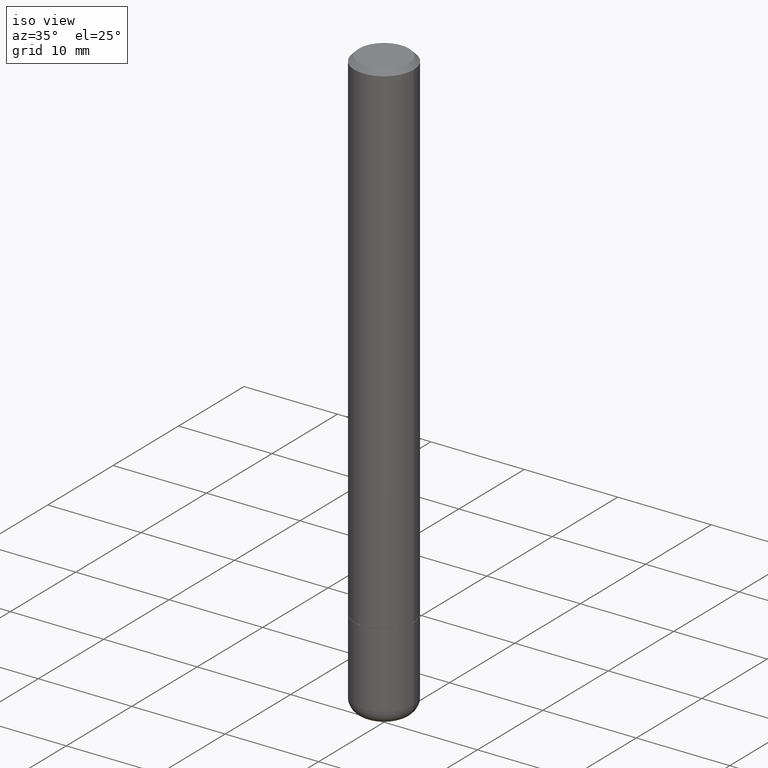
[diagram: clean part render]
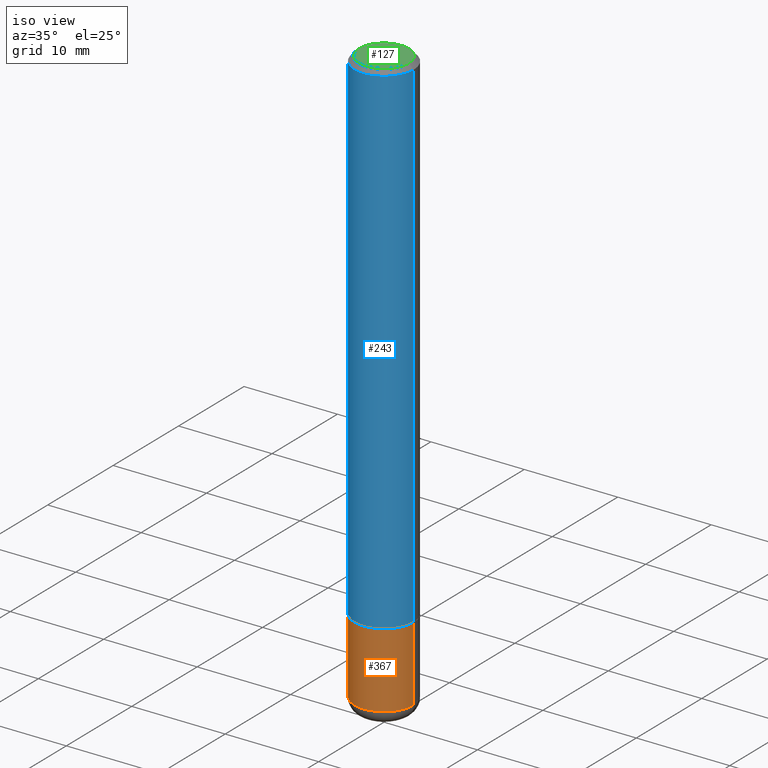
[diagram: same view with three faces highlighted in distinct colors, each labeled with its STEP entity id]
A machine part, iso view with three faces highlighted in distinct colors.
Their STEP definitions:

[orange] entity #367 — the highlighted cylindrical surface (edge-blend (fillet) strip) has radius 3.175 mm, axis along (-0, 0, 1).
#2 = EDGE_CURVE ( 'NONE', #109, #209, #35, .T. ) ;
#25 = CARTESIAN_POINT ( 'NONE',  ( -0.1249999999999998335, 8.881784197001240490E-16, -6.148668862818623819E-30 ) ) ;
#35 = LINE ( 'NONE', #226, #51 ) ;
#51 = VECTOR ( 'NONE', #185, 39.37007874015748143 ) ;
#55 = EDGE_LOOP ( 'NONE', ( #180, #177, #237, #204 ) ) ;
#68 = CARTESIAN_POINT ( 'NONE',  ( -0.1249999999999996253, -7.081131724556683478E-15, -2.125000000000000444 ) ) ;
#93 = CARTESIAN_POINT ( 'NONE',  ( 0.1249999999999996253, -8.292268179752466962E-15, -2.125000000000000444 ) ) ;
#109 = VERTEX_POINT ( 'NONE', #288 ) ;
#137 = CARTESIAN_POINT ( 'NONE',  ( -0.1250000000000000278, -7.081131724556681111E-15, -2.440002284616149986 ) ) ;
#144 = CARTESIAN_POINT ( 'NONE',  ( 0.000000000000000000, 0.000000000000000000, 0.000000000000000000 ) ) ;
#168 = AXIS2_PLACEMENT_3D ( 'NONE', #200, #348, #319 ) ;
#173 = DIRECTION ( 'NONE',  ( -2.445468806185136877E-29, 3.491481338843145188E-15, 1.000000000000000000 ) ) ;
#177 = ORIENTED_EDGE ( 'NONE', *, *, #267, .T. ) ;
#179 = CYLINDRICAL_SURFACE ( 'NONE', #245, 0.1249999999999998335 ) ;
#180 = ORIENTED_EDGE ( 'NONE', *, *, #297, .F. ) ;
#181 = DIRECTION ( 'NONE',  ( 1.000000000000000000, -6.982962677686269077E-15, 0.000000000000000000 ) ) ;
#185 = DIRECTION ( 'NONE',  ( -2.445468806185136877E-29, 3.491481338843145188E-15, 1.000000000000000000 ) ) ;
#200 = CARTESIAN_POINT ( 'NONE',  ( 5.966949474049262823E-29, -8.519222443471929064E-15, -2.440002284616149986 ) ) ;
#204 = ORIENTED_EDGE ( 'NONE', *, *, #350, .F. ) ;
#206 = CARTESIAN_POINT ( 'NONE',  ( 5.196621213143416389E-29, -7.419397845041685201E-15, -2.125000000000000444 ) ) ;
#209 = VERTEX_POINT ( 'NONE', #93 ) ;
#214 = AXIS2_PLACEMENT_3D ( 'NONE', #206, #215, #181 ) ;
#215 = DIRECTION ( 'NONE',  ( -2.445468806185136597E-29, 3.491481338843145583E-15, 1.000000000000000000 ) ) ;
#226 = CARTESIAN_POINT ( 'NONE',  ( 0.1249999999999998335, -8.728703347107821555E-16, 6.095220969744911333E-30 ) ) ;
#237 = ORIENTED_EDGE ( 'NONE', *, *, #2, .T. ) ;
#245 = AXIS2_PLACEMENT_3D ( 'NONE', #144, #296, #369 ) ;
#254 = VECTOR ( 'NONE', #173, 39.37007874015748143 ) ;
#267 = EDGE_CURVE ( 'NONE', #381, #109, #469, .T. ) ;
#288 = CARTESIAN_POINT ( 'NONE',  ( 0.1250000000000000278, -9.392092778182712402E-15, -2.440002284616149986 ) ) ;
#296 = DIRECTION ( 'NONE',  ( -2.445468806185136597E-29, 3.491481338843145583E-15, 1.000000000000000000 ) ) ;
#297 = EDGE_CURVE ( 'NONE', #381, #334, #390, .T. ) ;
#319 = DIRECTION ( 'NONE',  ( 1.000000000000000000, -6.982962677686269077E-15, 0.000000000000000000 ) ) ;
#334 = VERTEX_POINT ( 'NONE', #68 ) ;
#348 = DIRECTION ( 'NONE',  ( -2.445468806185136597E-29, 3.491481338843145583E-15, 1.000000000000000000 ) ) ;
#350 = EDGE_CURVE ( 'NONE', #334, #209, #370, .T. ) ;
#364 = FACE_OUTER_BOUND ( 'NONE', #55, .T. ) ;
#367 = ADVANCED_FACE ( 'NONE', ( #364 ), #179, .T. ) ;
#369 = DIRECTION ( 'NONE',  ( 1.000000000000000000, -6.982962677686266711E-15, 4.876176775795935793E-29 ) ) ;
#370 = CIRCLE ( 'NONE', #214, 0.1249999999999996253 ) ;
#381 = VERTEX_POINT ( 'NONE', #137 ) ;
#390 = LINE ( 'NONE', #25, #254 ) ;
#469 = CIRCLE ( 'NONE', #168, 0.1250000000000000278 ) ;

[blue] entity #243 — the highlighted cylindrical surface (edge-blend (fillet) strip) has radius 3.175 mm, axis along (-0, 0, 1).
#7 = ORIENTED_EDGE ( 'NONE', *, *, #208, .T. ) ;
#21 = CARTESIAN_POINT ( 'NONE',  ( 4.890937612370295054E-31, -6.982962677686322424E-17, -0.02000000000000009062 ) ) ;
#30 = DIRECTION ( 'NONE',  ( 1.000000000000000000, -6.982962677686269077E-15, 0.000000000000000000 ) ) ;
#31 = VERTEX_POINT ( 'NONE', #464 ) ;
#43 = VERTEX_POINT ( 'NONE', #54 ) ;
#53 = CYLINDRICAL_SURFACE ( 'NONE', #309, 0.1249999999999994865 ) ;
#54 = CARTESIAN_POINT ( 'NONE',  ( 0.1249999999999993477, -9.273918764983002075E-16, -0.02000000000000009062 ) ) ;
#60 = EDGE_CURVE ( 'NONE', #31, #43, #440, .T. ) ;
#72 = DIRECTION ( 'NONE',  ( -2.445468806185136877E-29, 3.491481338843145188E-15, 1.000000000000000000 ) ) ;
#75 = LINE ( 'NONE', #400, #339 ) ;
#115 = ORIENTED_EDGE ( 'NONE', *, *, #60, .F. ) ;
#125 = DIRECTION ( 'NONE',  ( -2.445468806185136597E-29, 3.491481338843145583E-15, 1.000000000000000000 ) ) ;
#145 = VERTEX_POINT ( 'NONE', #225 ) ;
#169 = FACE_OUTER_BOUND ( 'NONE', #413, .T. ) ;
#174 = VECTOR ( 'NONE', #315, 39.37007874015748143 ) ;
#198 = DIRECTION ( 'NONE',  ( 1.000000000000000000, -6.982962677686265922E-15, 4.876176775795935793E-29 ) ) ;
#207 = DIRECTION ( 'NONE',  ( -2.445468806185136597E-29, 3.491481338843145583E-15, 1.000000000000000000 ) ) ;
#208 = EDGE_CURVE ( 'NONE', #145, #43, #317, .T. ) ;
#225 = CARTESIAN_POINT ( 'NONE',  ( 0.1249999999999996253, -8.288776698413623955E-15, -2.124000000000000554 ) ) ;
#240 = DIRECTION ( 'NONE',  ( 1.000000000000000000, -6.982962677686265922E-15, 0.000000000000000000 ) ) ;
#243 = ADVANCED_FACE ( 'NONE', ( #169 ), #53, .T. ) ;
#255 = CARTESIAN_POINT ( 'NONE',  ( 5.194175744337230786E-29, -7.415906363702842194E-15, -2.124000000000000554 ) ) ;
#258 = ORIENTED_EDGE ( 'NONE', *, *, #480, .F. ) ;
#292 = DIRECTION ( 'NONE',  ( -2.445468806185136597E-29, 3.491481338843145583E-15, 1.000000000000000000 ) ) ;
#299 = ORIENTED_EDGE ( 'NONE', *, *, #384, .T. ) ;
#308 = AXIS2_PLACEMENT_3D ( 'NONE', #21, #207, #240 ) ;
#309 = AXIS2_PLACEMENT_3D ( 'NONE', #467, #125, #198 ) ;
#315 = DIRECTION ( 'NONE',  ( -2.445468806185136877E-29, 3.491481338843145188E-15, 1.000000000000000000 ) ) ;
#317 = LINE ( 'NONE', #385, #174 ) ;
#339 = VECTOR ( 'NONE', #72, 39.37007874015748143 ) ;
#362 = CARTESIAN_POINT ( 'NONE',  ( -0.1249999999999996253, -2.854689575539726725E-15, -2.124000000000000554 ) ) ;
#384 = EDGE_CURVE ( 'NONE', #449, #145, #476, .T. ) ;
#385 = CARTESIAN_POINT ( 'NONE',  ( 0.1249999999999994865, -8.728703347107796903E-16, 6.095220969744894518E-30 ) ) ;
#400 = CARTESIAN_POINT ( 'NONE',  ( -0.1249999999999994865, 8.881784197001215839E-16, -6.148668862818606303E-30 ) ) ;
#413 = EDGE_LOOP ( 'NONE', ( #258, #299, #7, #115 ) ) ;
#440 = CIRCLE ( 'NONE', #308, 0.1249999999999993477 ) ;
#449 = VERTEX_POINT ( 'NONE', #362 ) ;
#457 = AXIS2_PLACEMENT_3D ( 'NONE', #255, #292, #30 ) ;
#464 = CARTESIAN_POINT ( 'NONE',  ( -0.1249999999999993477, 8.030407079339155047E-16, -0.02000000000000009062 ) ) ;
#467 = CARTESIAN_POINT ( 'NONE',  ( 0.000000000000000000, 0.000000000000000000, 0.000000000000000000 ) ) ;
#476 = CIRCLE ( 'NONE', #457, 0.1249999999999996253 ) ;
#480 = EDGE_CURVE ( 'NONE', #449, #31, #75, .T. ) ;

[green] entity #127 — the highlighted planar face has unit normal (0, -0, -1).
#9 = CARTESIAN_POINT ( 'NONE',  ( 1.043851414335219781E-45, -1.490343170380447145E-31, -4.268512490100411279E-17 ) ) ;
#17 = CIRCLE ( 'NONE', #301, 0.1049999999999993577 ) ;
#85 = DIRECTION ( 'NONE',  ( 2.438088387897960049E-29, -3.491481338843145188E-15, -1.000000000000000000 ) ) ;
#103 = AXIS2_PLACEMENT_3D ( 'NONE', #402, #85, #265 ) ;
#120 = VERTEX_POINT ( 'NONE', #175 ) ;
#127 = ADVANCED_FACE ( 'NONE', ( #270 ), #444, .F. ) ;
#143 = DIRECTION ( 'NONE',  ( 1.000000000000000000, -6.982962677686267499E-15, 4.874400871621268483E-29 ) ) ;
#165 = CARTESIAN_POINT ( 'NONE',  ( 0.1049999999999993577, -8.238720831321533257E-16, -4.268512490099867088E-17 ) ) ;
#175 = CARTESIAN_POINT ( 'NONE',  ( -0.1049999999999993577, 7.681258945454844472E-16, -4.268512490100935748E-17 ) ) ;
#182 = VERTEX_POINT ( 'NONE', #165 ) ;
#193 = ORIENTED_EDGE ( 'NONE', *, *, #228, .T. ) ;
#228 = EDGE_CURVE ( 'NONE', #182, #120, #448, .T. ) ;
#233 = DIRECTION ( 'NONE',  ( 1.000000000000000000, -6.982962677686267499E-15, 4.874400871621268483E-29 ) ) ;
#263 = AXIS2_PLACEMENT_3D ( 'NONE', #9, #281, #233 ) ;
#265 = DIRECTION ( 'NONE',  ( -1.000000000000000000, 6.982962677686265922E-15, -4.876176775795935793E-29 ) ) ;
#270 = FACE_OUTER_BOUND ( 'NONE', #327, .T. ) ;
#281 = DIRECTION ( 'NONE',  ( -2.445468806185136597E-29, 3.491481338843145583E-15, 1.000000000000000000 ) ) ;
#301 = AXIS2_PLACEMENT_3D ( 'NONE', #325, #479, #143 ) ;
#325 = CARTESIAN_POINT ( 'NONE',  ( 1.043851414335219781E-45, -1.490343170380447145E-31, -4.268512490100411279E-17 ) ) ;
#327 = EDGE_LOOP ( 'NONE', ( #378, #193 ) ) ;
#378 = ORIENTED_EDGE ( 'NONE', *, *, #489, .T. ) ;
#402 = CARTESIAN_POINT ( 'NONE',  ( 7.332110811570533898E-16, 0.1049999999999993577, -3.879481030290301102E-16 ) ) ;
#444 = PLANE ( 'NONE',  #103 ) ;
#448 = CIRCLE ( 'NONE', #263, 0.1049999999999993577 ) ;
#479 = DIRECTION ( 'NONE',  ( -2.445468806185136597E-29, 3.491481338843145583E-15, 1.000000000000000000 ) ) ;
#489 = EDGE_CURVE ( 'NONE', #120, #182, #17, .T. ) ;